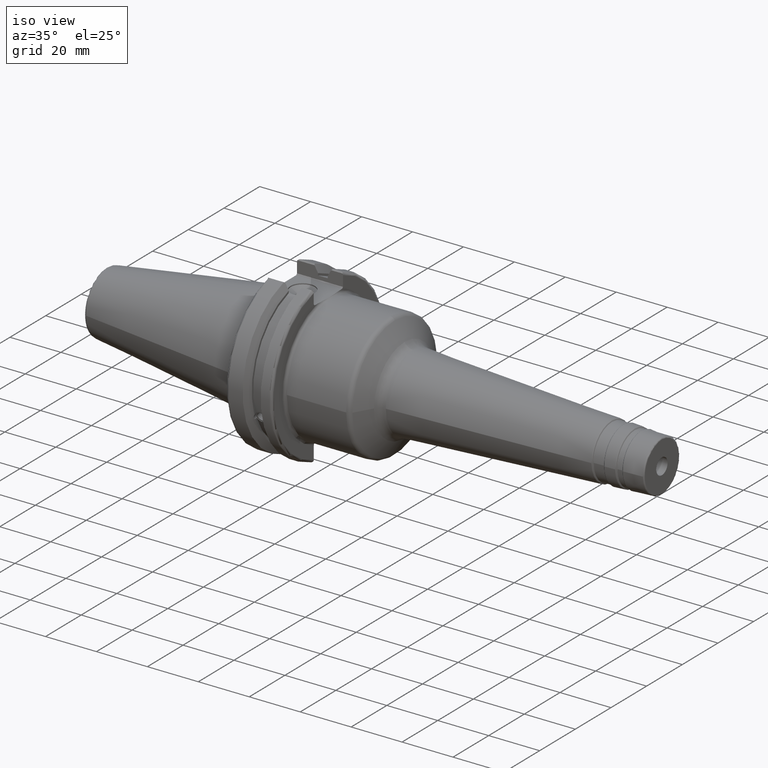
[diagram: clean part render]
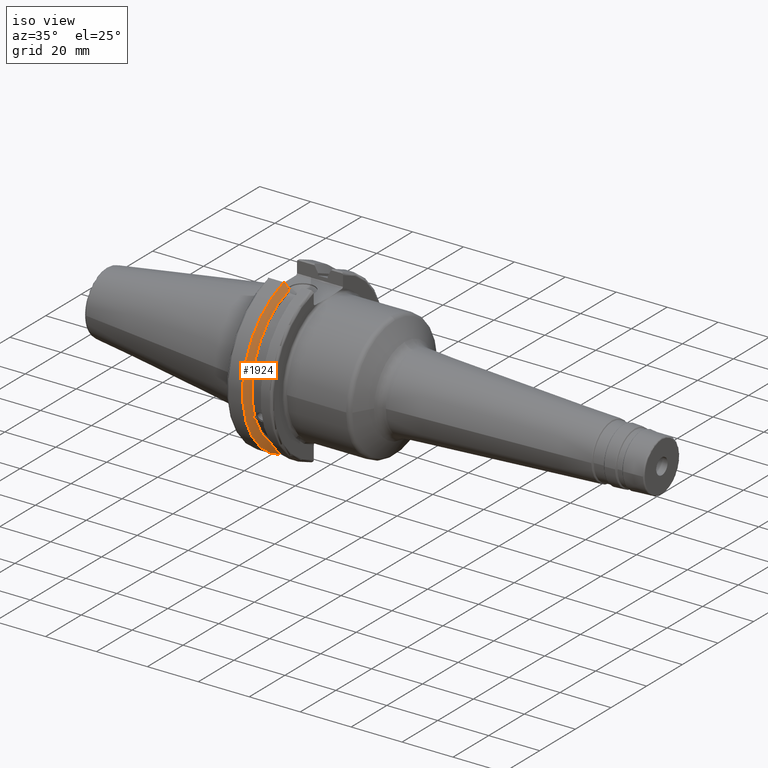
[diagram: same view with one face highlighted and labeled with its STEP entity id]
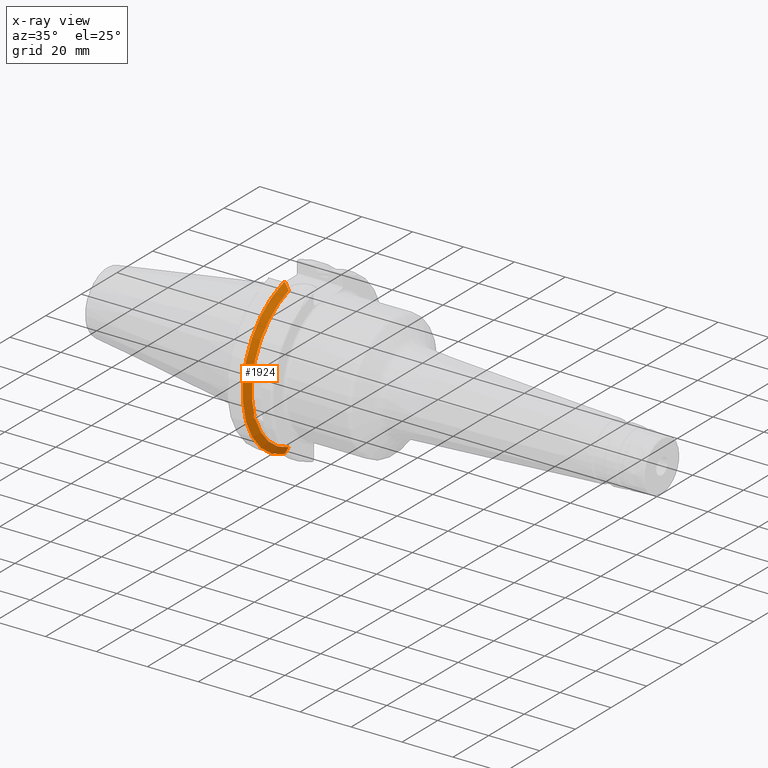
[diagram: x-ray of the same camera — body ghosted, the highlighted face saturated]
A machine part, iso view. The second image highlights one B-rep face of the part: STEP entity #1924.
The next image is the same camera in x-ray: the body ghosted, the highlighted face saturated — about 0% of this face is hidden behind the body in this view.
In plain terms, the highlighted conical surface has half-angle 60 deg.
Its self-contained STEP definition (entity closure, byte-faithful):
#24=(
BOUNDED_CURVE()
B_SPLINE_CURVE(2,(#3617,#3618,#3619),.UNSPECIFIED.,.F.,.F.)
B_SPLINE_CURVE_WITH_KNOTS((3,3),(0.,0.276549142797088),.UNSPECIFIED.)
CURVE()
GEOMETRIC_REPRESENTATION_ITEM()
RATIONAL_B_SPLINE_CURVE((1.,1.00095203903867,1.00031614444995))
REPRESENTATION_ITEM('')
);
#25=(
BOUNDED_CURVE()
B_SPLINE_CURVE(2,(#3629,#3630,#3631),.UNSPECIFIED.,.F.,.F.)
B_SPLINE_CURVE_WITH_KNOTS((3,3),(0.0550586467393311,0.331607789535851),
 .UNSPECIFIED.)
CURVE()
GEOMETRIC_REPRESENTATION_ITEM()
RATIONAL_B_SPLINE_CURVE((1.00031614445049,1.00095203904028,1.))
REPRESENTATION_ITEM('')
);
#26=(
BOUNDED_CURVE()
B_SPLINE_CURVE(2,(#3664,#3665,#3666),.UNSPECIFIED.,.F.,.F.)
B_SPLINE_CURVE_WITH_KNOTS((3,3),(0.,0.0639048713675838),.UNSPECIFIED.)
CURVE()
GEOMETRIC_REPRESENTATION_ITEM()
RATIONAL_B_SPLINE_CURVE((1.,1.00028444218292,1.00047644010588))
REPRESENTATION_ITEM('')
);
#27=(
BOUNDED_CURVE()
B_SPLINE_CURVE(2,(#3672,#3673,#3674),.UNSPECIFIED.,.F.,.F.)
B_SPLINE_CURVE_WITH_KNOTS((3,3),(0.329353533631213,0.393258405001024),
 .UNSPECIFIED.)
CURVE()
GEOMETRIC_REPRESENTATION_ITEM()
RATIONAL_B_SPLINE_CURVE((1.00047644010576,1.00028444218285,1.))
REPRESENTATION_ITEM('')
);
#129=B_SPLINE_CURVE_WITH_KNOTS('',3,(#3215,#3216,#3217,#3218,#3219,#3220,
#3221,#3222,#3223,#3224,#3225,#3226,#3227,#3228),.UNSPECIFIED.,.F.,.F.,
(4,2,2,2,2,2,4),(0.451995700189025,0.464547828547662,0.504528771685168,
0.544509714822673,0.584490657960178,0.624471601097683,0.637023729456319),
 .UNSPECIFIED.);
#279=FACE_OUTER_BOUND('',#399,.T.);
#399=EDGE_LOOP('',(#1753,#1754,#1755,#1756,#1757,#1758,#1759,#1760));
#692=CIRCLE('',#2100,28.9593772964944);
#715=CIRCLE('',#2158,31.75);
#727=CIRCLE('',#2191,28.9593772964944);
#822=VERTEX_POINT('',#3212);
#823=VERTEX_POINT('',#3214);
#840=VERTEX_POINT('',#3307);
#901=VERTEX_POINT('',#3614);
#902=VERTEX_POINT('',#3616);
#905=VERTEX_POINT('',#3628);
#909=VERTEX_POINT('',#3662);
#910=VERTEX_POINT('',#3668);
#1053=EDGE_CURVE('',#823,#822,#129,.T.);
#1077=EDGE_CURVE('',#823,#840,#692,.T.);
#1162=EDGE_CURVE('',#902,#901,#24,.T.);
#1168=EDGE_CURVE('',#905,#840,#25,.T.);
#1176=EDGE_CURVE('',#909,#901,#26,.T.);
#1178=EDGE_CURVE('',#909,#910,#715,.T.);
#1179=EDGE_CURVE('',#905,#910,#27,.T.);
#1210=EDGE_CURVE('',#902,#822,#727,.T.);
#1753=ORIENTED_EDGE('',*,*,#1053,.T.);
#1754=ORIENTED_EDGE('',*,*,#1210,.F.);
#1755=ORIENTED_EDGE('',*,*,#1162,.T.);
#1756=ORIENTED_EDGE('',*,*,#1176,.F.);
#1757=ORIENTED_EDGE('',*,*,#1178,.T.);
#1758=ORIENTED_EDGE('',*,*,#1179,.F.);
#1759=ORIENTED_EDGE('',*,*,#1168,.T.);
#1760=ORIENTED_EDGE('',*,*,#1077,.F.);
#1826=CONICAL_SURFACE('',#2190,30.3546886482472,1.0471975511966);
#1924=ADVANCED_FACE('',(#279),#1826,.T.);
#2100=AXIS2_PLACEMENT_3D('',#3308,#2533,#2534);
#2158=AXIS2_PLACEMENT_3D('',#3670,#2691,#2692);
#2190=AXIS2_PLACEMENT_3D('',#3763,#2768,#2769);
#2191=AXIS2_PLACEMENT_3D('',#3764,#2770,#2771);
#2533=DIRECTION('center_axis',(1.,0.,0.));
#2534=DIRECTION('ref_axis',(0.,0.,-1.));
#2691=DIRECTION('center_axis',(1.,0.,0.));
#2692=DIRECTION('ref_axis',(0.,0.,-1.));
#2768=DIRECTION('center_axis',(-1.,0.,0.));
#2769=DIRECTION('ref_axis',(0.,-1.,-1.22464679914735E-16));
#2770=DIRECTION('center_axis',(1.,0.,0.));
#2771=DIRECTION('ref_axis',(0.,0.,-1.));
#3212=CARTESIAN_POINT('',(9.2191,-27.4956274489925,-9.09043478536247));
#3214=CARTESIAN_POINT('',(9.21909999999999,-26.9060914640648,-10.7101715919071));
#3215=CARTESIAN_POINT('Ctrl Pts',(9.21909999999999,-26.9060914640648,-10.7101715919071));
#3216=CARTESIAN_POINT('Ctrl Pts',(9.20497959280038,-26.9406927482839,-10.6893765730703));
#3217=CARTESIAN_POINT('Ctrl Pts',(9.19150701821433,-26.9744191989197,-10.6676007180673));
#3218=CARTESIAN_POINT('Ctrl Pts',(9.13811855884095,-27.1113422433188,-10.5723885976054));
#3219=CARTESIAN_POINT('Ctrl Pts',(9.09998029158246,-27.2180531796526,-10.4801333026531));
#3220=CARTESIAN_POINT('Ctrl Pts',(9.04778935539424,-27.3968610665578,-10.2639559818059));
#3221=CARTESIAN_POINT('Ctrl Pts',(9.0341,-27.4684373304961,-10.139516340139));
#3222=CARTESIAN_POINT('Ctrl Pts',(9.0341,-27.559599249844,-9.8890510252165));
#3223=CARTESIAN_POINT('Ctrl Pts',(9.04778935539424,-27.5847569104121,-9.74771639360671));
#3224=CARTESIAN_POINT('Ctrl Pts',(9.09998029158246,-27.5867382255984,-9.46717946402648));
#3225=CARTESIAN_POINT('Ctrl Pts',(9.13811855884095,-27.5642934663232,-9.32791534028655));
#3226=CARTESIAN_POINT('Ctrl Pts',(9.19150701821433,-27.5206055003512,-9.16696618806878));
#3227=CARTESIAN_POINT('Ctrl Pts',(9.20497959280038,-27.5087667900418,-9.12860597076219));
#3228=CARTESIAN_POINT('Ctrl Pts',(9.21909999999999,-27.4956274489925,-9.09043478536247));
#3307=CARTESIAN_POINT('',(9.2191,-8.19,-27.7771386827498));
#3308=CARTESIAN_POINT('Origin',(9.2191,0.,0.));
#3614=CARTESIAN_POINT('',(7.88668530351255,-8.19,30.1755016258903));
#3616=CARTESIAN_POINT('',(9.2191,-8.19,27.7771386827498));
#3617=CARTESIAN_POINT('Ctrl Pts',(9.2191,-8.19,27.7771386827498));
#3618=CARTESIAN_POINT('Ctrl Pts',(8.58046356153227,-8.19,28.9303689539555));
#3619=CARTESIAN_POINT('Ctrl Pts',(7.88668530351255,-8.19,30.1755016258903));
#3628=CARTESIAN_POINT('',(7.88668530351256,-8.19,-30.1755016258903));
#3629=CARTESIAN_POINT('Ctrl Pts',(7.88668530351256,-8.19,-30.1755016258903));
#3630=CARTESIAN_POINT('Ctrl Pts',(8.5804635615239,-8.19,-28.9303689539705));
#3631=CARTESIAN_POINT('Ctrl Pts',(9.2191,-8.19,-27.7771386827498));
#3662=CARTESIAN_POINT('',(7.60793323092436,-8.67204822802685,30.5427254764662));
#3664=CARTESIAN_POINT('Ctrl Pts',(7.60793323092436,-8.67204822802685,30.5427254764662));
#3665=CARTESIAN_POINT('Ctrl Pts',(7.74899148121628,-8.42917748262643,30.3577067892629));
#3666=CARTESIAN_POINT('Ctrl Pts',(7.88668530351255,-8.19,30.1755016258903));
#3668=CARTESIAN_POINT('',(7.60793323092436,-8.67204822802685,-30.5427254764662));
#3670=CARTESIAN_POINT('Origin',(7.60793323092436,0.,0.));
#3672=CARTESIAN_POINT('Ctrl Pts',(7.88668530351256,-8.19,-30.1755016258903));
#3673=CARTESIAN_POINT('Ctrl Pts',(7.7489914812116,-8.42917748263465,-30.3577067892692));
#3674=CARTESIAN_POINT('Ctrl Pts',(7.60793323092436,-8.67204822802685,-30.5427254764662));
#3763=CARTESIAN_POINT('Origin',(8.41351661546217,0.,0.));
#3764=CARTESIAN_POINT('Origin',(9.2191,0.,0.));